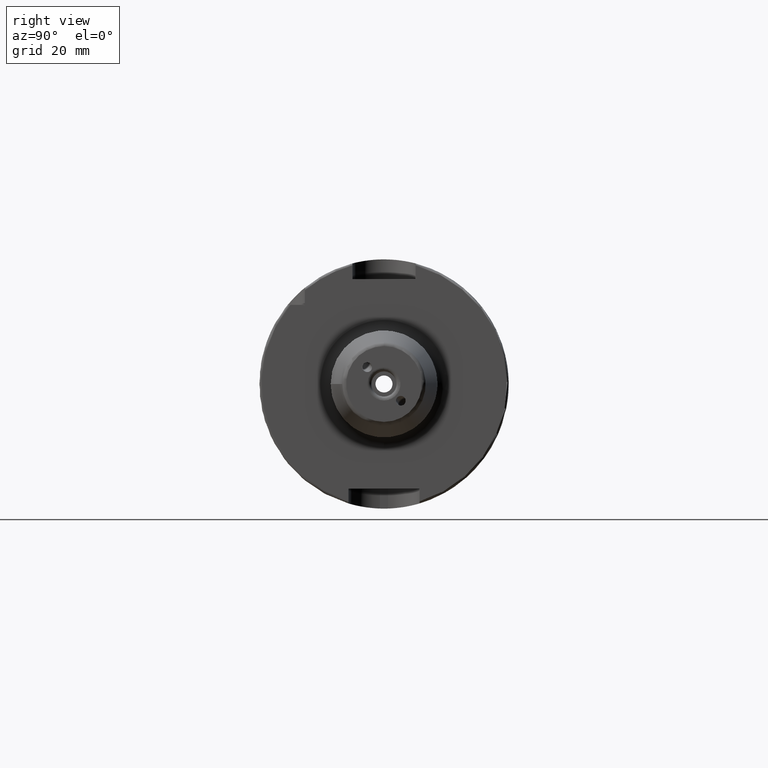
[diagram: clean part render]
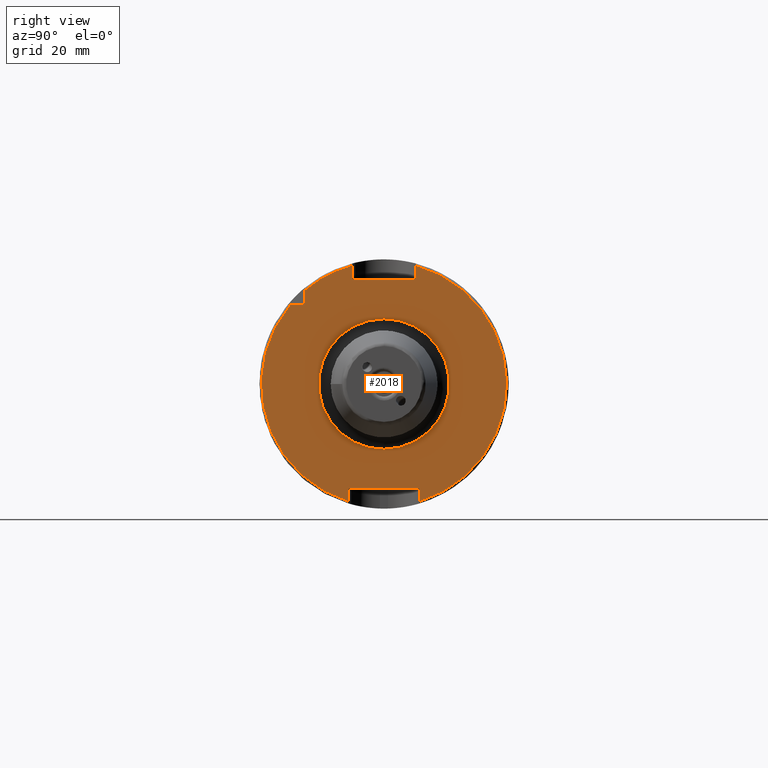
[diagram: same view with one face highlighted and labeled with its STEP entity id]
A machine part, right view. The second image highlights one B-rep face of the part: STEP entity #2018.
In plain terms, the highlighted planar face has unit normal (1, 0, 0).
Its self-contained STEP definition (entity closure, byte-faithful):
#92=FACE_BOUND('',#350,.T.);
#103=PLANE('',#2180);
#225=FACE_OUTER_BOUND('',#349,.T.);
#349=EDGE_LOOP('',(#1396,#1397,#1398,#1399,#1400,#1401,#1402,#1403,#1404,
#1405,#1406));
#350=EDGE_LOOP('',(#1407));
#476=LINE('',#3094,#586);
#477=LINE('',#3098,#587);
#478=LINE('',#3100,#588);
#479=LINE('',#3102,#589);
#480=LINE('',#3106,#590);
#481=LINE('',#3108,#591);
#482=LINE('',#3110,#592);
#483=LINE('',#3113,#593);
#586=VECTOR('',#2478,10.);
#587=VECTOR('',#2481,10.);
#588=VECTOR('',#2482,10.);
#589=VECTOR('',#2483,10.);
#590=VECTOR('',#2486,10.);
#591=VECTOR('',#2487,10.);
#592=VECTOR('',#2488,10.);
#593=VECTOR('',#2491,10.);
#703=CIRCLE('',#2177,16.5);
#705=CIRCLE('',#2181,31.);
#706=CIRCLE('',#2182,31.);
#707=CIRCLE('',#2183,31.);
#834=VERTEX_POINT('',#3085);
#835=VERTEX_POINT('',#3092);
#836=VERTEX_POINT('',#3093);
#837=VERTEX_POINT('',#3095);
#838=VERTEX_POINT('',#3097);
#839=VERTEX_POINT('',#3099);
#840=VERTEX_POINT('',#3101);
#841=VERTEX_POINT('',#3103);
#842=VERTEX_POINT('',#3105);
#843=VERTEX_POINT('',#3107);
#844=VERTEX_POINT('',#3109);
#845=VERTEX_POINT('',#3111);
#1049=EDGE_CURVE('',#834,#834,#703,.T.);
#1052=EDGE_CURVE('',#835,#836,#476,.T.);
#1053=EDGE_CURVE('',#836,#837,#705,.T.);
#1054=EDGE_CURVE('',#837,#838,#477,.T.);
#1055=EDGE_CURVE('',#838,#839,#478,.T.);
#1056=EDGE_CURVE('',#839,#840,#479,.T.);
#1057=EDGE_CURVE('',#840,#841,#706,.T.);
#1058=EDGE_CURVE('',#841,#842,#480,.T.);
#1059=EDGE_CURVE('',#842,#843,#481,.T.);
#1060=EDGE_CURVE('',#843,#844,#482,.T.);
#1061=EDGE_CURVE('',#844,#845,#707,.T.);
#1062=EDGE_CURVE('',#845,#835,#483,.T.);
#1396=ORIENTED_EDGE('',*,*,#1052,.T.);
#1397=ORIENTED_EDGE('',*,*,#1053,.T.);
#1398=ORIENTED_EDGE('',*,*,#1054,.T.);
#1399=ORIENTED_EDGE('',*,*,#1055,.T.);
#1400=ORIENTED_EDGE('',*,*,#1056,.T.);
#1401=ORIENTED_EDGE('',*,*,#1057,.T.);
#1402=ORIENTED_EDGE('',*,*,#1058,.T.);
#1403=ORIENTED_EDGE('',*,*,#1059,.T.);
#1404=ORIENTED_EDGE('',*,*,#1060,.T.);
#1405=ORIENTED_EDGE('',*,*,#1061,.T.);
#1406=ORIENTED_EDGE('',*,*,#1062,.T.);
#1407=ORIENTED_EDGE('',*,*,#1049,.F.);
#2018=ADVANCED_FACE('',(#225,#92),#103,.T.);
#2177=AXIS2_PLACEMENT_3D('',#3087,#2469,#2470);
#2180=AXIS2_PLACEMENT_3D('',#3091,#2476,#2477);
#2181=AXIS2_PLACEMENT_3D('',#3096,#2479,#2480);
#2182=AXIS2_PLACEMENT_3D('',#3104,#2484,#2485);
#2183=AXIS2_PLACEMENT_3D('',#3112,#2489,#2490);
#2469=DIRECTION('center_axis',(1.,0.,0.));
#2470=DIRECTION('ref_axis',(0.,-1.,-1.22464679914735E-16));
#2476=DIRECTION('center_axis',(1.,0.,0.));
#2477=DIRECTION('ref_axis',(0.,0.,-1.));
#2478=DIRECTION('',(0.,-1.,0.));
#2479=DIRECTION('center_axis',(1.,0.,0.));
#2480=DIRECTION('ref_axis',(0.,0.,-1.));
#2481=DIRECTION('',(0.,0.,1.));
#2482=DIRECTION('',(0.,1.,0.));
#2483=DIRECTION('',(0.,0.,-1.));
#2484=DIRECTION('center_axis',(1.,0.,0.));
#2485=DIRECTION('ref_axis',(0.,0.,-1.));
#2486=DIRECTION('',(0.,0.,-1.));
#2487=DIRECTION('',(0.,-1.,0.));
#2488=DIRECTION('',(0.,0.,1.));
#2489=DIRECTION('center_axis',(1.,0.,0.));
#2490=DIRECTION('ref_axis',(0.,0.,-1.));
#2491=DIRECTION('',(0.,0.,-1.));
#3085=CARTESIAN_POINT('',(26.,-2.02066721859313E-15,-16.5));
#3087=CARTESIAN_POINT('Origin',(26.,0.,0.));
#3091=CARTESIAN_POINT('Origin',(26.,0.,0.));
#3092=CARTESIAN_POINT('',(26.,-20.,20.));
#3093=CARTESIAN_POINT('',(26.,-23.685438564654,20.));
#3094=CARTESIAN_POINT('',(26.,-12.,20.));
#3095=CARTESIAN_POINT('',(26.,-9.,-29.6647939483827));
#3096=CARTESIAN_POINT('Origin',(26.,0.,0.));
#3097=CARTESIAN_POINT('',(26.,-9.,-26.5));
#3098=CARTESIAN_POINT('',(26.,-9.,-13.25));
#3099=CARTESIAN_POINT('',(26.,9.,-26.5));
#3100=CARTESIAN_POINT('',(26.,1.94289029309402E-15,-26.5));
#3101=CARTESIAN_POINT('',(26.,9.,-29.6647939483827));
#3102=CARTESIAN_POINT('',(26.,9.,-13.25));
#3103=CARTESIAN_POINT('',(26.,8.,29.9499582637439));
#3104=CARTESIAN_POINT('Origin',(26.,0.,0.));
#3105=CARTESIAN_POINT('',(26.,8.,26.5));
#3106=CARTESIAN_POINT('',(26.,8.,13.25));
#3107=CARTESIAN_POINT('',(26.,-8.,26.5));
#3108=CARTESIAN_POINT('',(26.,5.55111512312578E-16,26.5));
#3109=CARTESIAN_POINT('',(26.,-8.,29.9499582637439));
#3110=CARTESIAN_POINT('',(26.,-8.,13.25));
#3111=CARTESIAN_POINT('',(26.,-20.,23.685438564654));
#3112=CARTESIAN_POINT('Origin',(26.,0.,0.));
#3113=CARTESIAN_POINT('',(26.,-20.,10.));